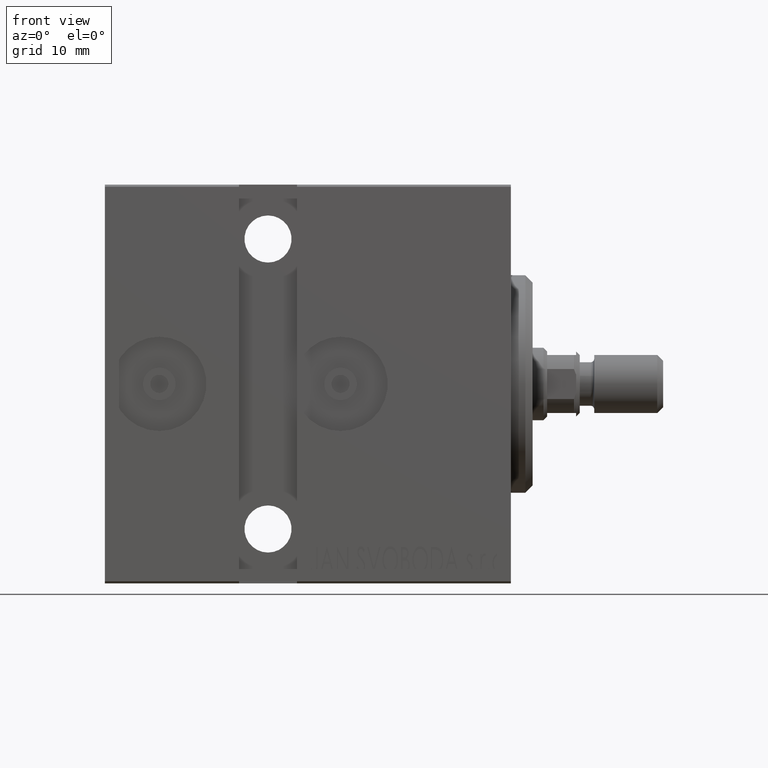
[diagram: clean part render]
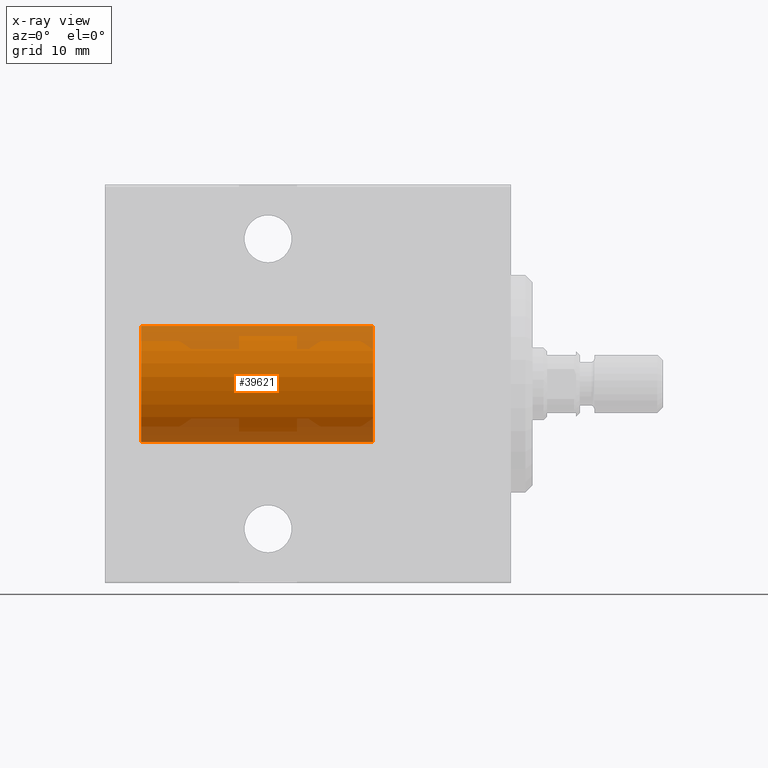
[diagram: x-ray — body ghosted, one internal face saturated and labeled with its STEP entity id]
A machine part, front view, then the same camera in x-ray: the body is ghosted and one INTERNAL B-rep face — a face not visible from any outside direction — is saturated and labeled: STEP entity #39621.
In plain terms, the highlighted cylindrical surface (partial cylindrical patch) has radius 8 mm, axis along (-1, -0, 0).
Its self-contained STEP definition (entity closure, byte-faithful):
#814 = ORIENTED_EDGE ( 'NONE', *, *, #25427, .F. ) ;
#2223 = DIRECTION ( 'NONE',  ( -1.000000000000000000, 0.000000000000000000, 0.000000000000000000 ) ) ;
#2517 = AXIS2_PLACEMENT_3D ( 'NONE', #15414, #25493, #2223 ) ;
#2549 = AXIS2_PLACEMENT_3D ( 'NONE', #11969, #28004, #28434 ) ;
#2675 = VECTOR ( 'NONE', #5281, 1000.000000000000000 ) ;
#4057 = ORIENTED_EDGE ( 'NONE', *, *, #40212, .T. ) ;
#4643 = CIRCLE ( 'NONE', #30581, 8.000000000000000000 ) ;
#5066 = LINE ( 'NONE', #5931, #2675 ) ;
#5281 = DIRECTION ( 'NONE',  ( -0.000000000000000000, -0.000000000000000000, -1.000000000000000000 ) ) ;
#5931 = CARTESIAN_POINT ( 'NONE',  ( -8.000000000000000000, 0.000000000000000000, 32.00000000000000000 ) ) ;
#10940 = EDGE_CURVE ( 'NONE', #33080, #14596, #39777, .T. ) ;
#11969 = CARTESIAN_POINT ( 'NONE',  ( 0.000000000000000000, 0.000000000000000000, 0.000000000000000000 ) ) ;
#12108 = CYLINDRICAL_SURFACE ( 'NONE', #2517, 8.000000000000000000 ) ;
#14596 = VERTEX_POINT ( 'NONE', #26786 ) ;
#15414 = CARTESIAN_POINT ( 'NONE',  ( 0.000000000000000000, 0.000000000000000000, 32.00000000000000000 ) ) ;
#15689 = VERTEX_POINT ( 'NONE', #16422 ) ;
#15821 = CARTESIAN_POINT ( 'NONE',  ( 8.000000000000000000, 9.797174393178825657E-16, 32.00000000000000000 ) ) ;
#15965 = DIRECTION ( 'NONE',  ( 0.000000000000000000, 0.000000000000000000, 1.000000000000000000 ) ) ;
#16422 = CARTESIAN_POINT ( 'NONE',  ( -8.000000000000000000, 0.000000000000000000, 32.00000000000000000 ) ) ;
#16522 = ORIENTED_EDGE ( 'NONE', *, *, #10940, .F. ) ;
#17514 = EDGE_LOOP ( 'NONE', ( #16522, #814, #23835, #4057 ) ) ;
#23068 = CARTESIAN_POINT ( 'NONE',  ( 8.000000000000000000, 9.797174393178825657E-16, 32.00000000000000000 ) ) ;
#23835 = ORIENTED_EDGE ( 'NONE', *, *, #33064, .T. ) ;
#25282 = FACE_OUTER_BOUND ( 'NONE', #17514, .T. ) ;
#25427 = EDGE_CURVE ( 'NONE', #15689, #33080, #4643, .T. ) ;
#25493 = DIRECTION ( 'NONE',  ( -0.000000000000000000, -0.000000000000000000, -1.000000000000000000 ) ) ;
#26609 = CARTESIAN_POINT ( 'NONE',  ( -8.000000000000000000, 0.000000000000000000, 0.000000000000000000 ) ) ;
#26786 = CARTESIAN_POINT ( 'NONE',  ( 8.000000000000000000, 9.797174393178825657E-16, 0.000000000000000000 ) ) ;
#28004 = DIRECTION ( 'NONE',  ( 0.000000000000000000, 0.000000000000000000, 1.000000000000000000 ) ) ;
#28434 = DIRECTION ( 'NONE',  ( 1.000000000000000000, 0.000000000000000000, 0.000000000000000000 ) ) ;
#29128 = VERTEX_POINT ( 'NONE', #26609 ) ;
#30110 = DIRECTION ( 'NONE',  ( -0.000000000000000000, -0.000000000000000000, -1.000000000000000000 ) ) ;
#30581 = AXIS2_PLACEMENT_3D ( 'NONE', #39893, #15965, #42328 ) ;
#33064 = EDGE_CURVE ( 'NONE', #15689, #29128, #5066, .T. ) ;
#33080 = VERTEX_POINT ( 'NONE', #15821 ) ;
#35129 = VECTOR ( 'NONE', #30110, 1000.000000000000000 ) ;
#39621 = ADVANCED_FACE ( 'NONE', ( #25282 ), #12108, .T. ) ;
#39777 = LINE ( 'NONE', #23068, #35129 ) ;
#39893 = CARTESIAN_POINT ( 'NONE',  ( 0.000000000000000000, 0.000000000000000000, 32.00000000000000000 ) ) ;
#40212 = EDGE_CURVE ( 'NONE', #29128, #14596, #40429, .T. ) ;
#40429 = CIRCLE ( 'NONE', #2549, 8.000000000000000000 ) ;
#42328 = DIRECTION ( 'NONE',  ( 1.000000000000000000, 0.000000000000000000, 0.000000000000000000 ) ) ;